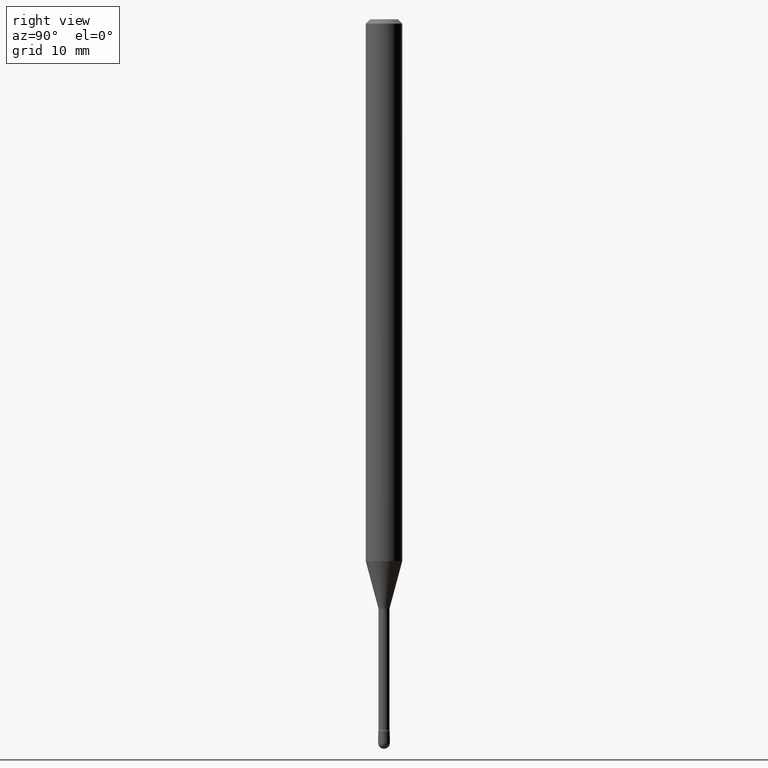
[diagram: clean part render]
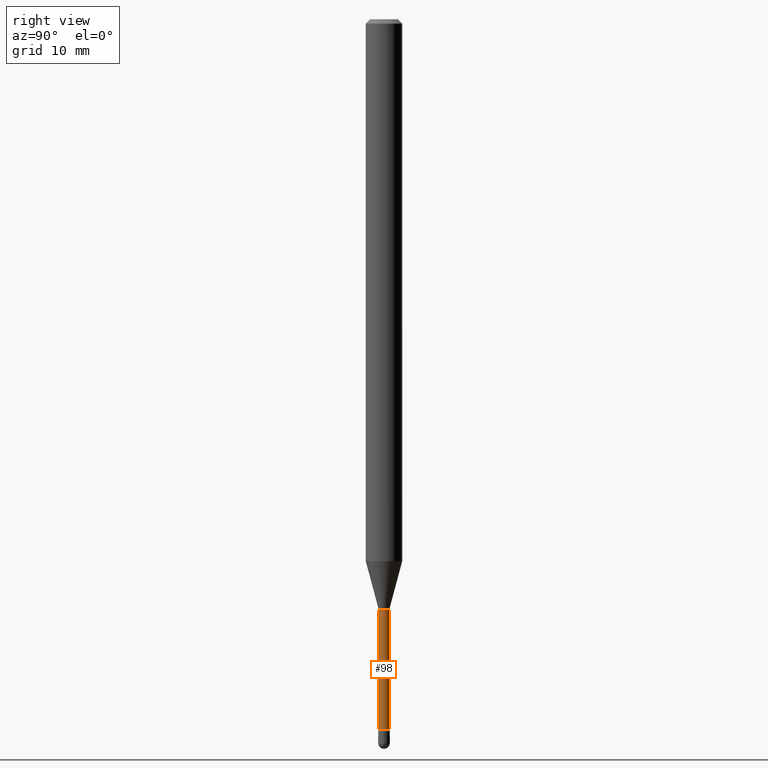
[diagram: same view with one face highlighted and labeled with its STEP entity id]
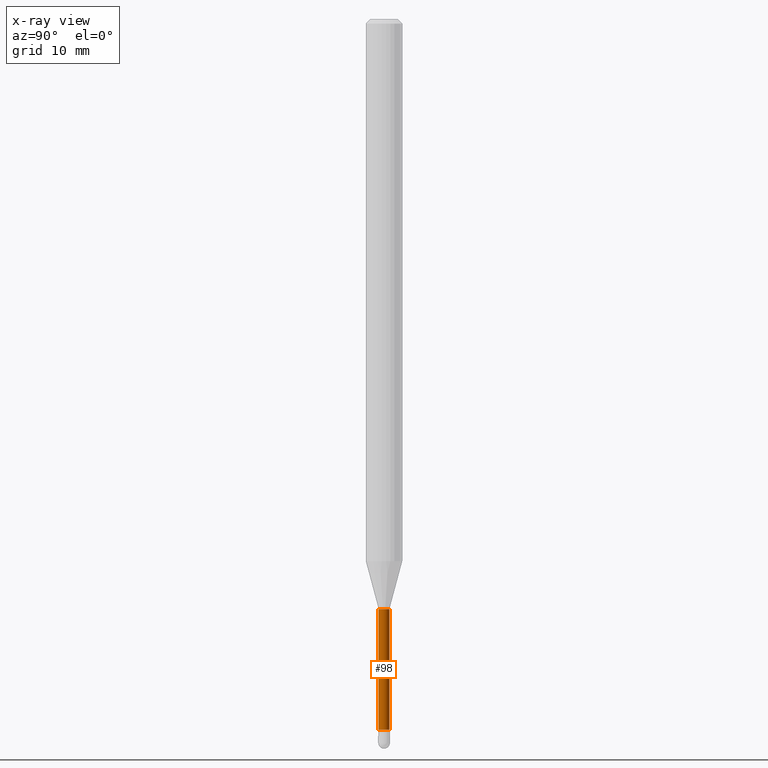
[diagram: x-ray of the same camera — body ghosted, the highlighted face saturated]
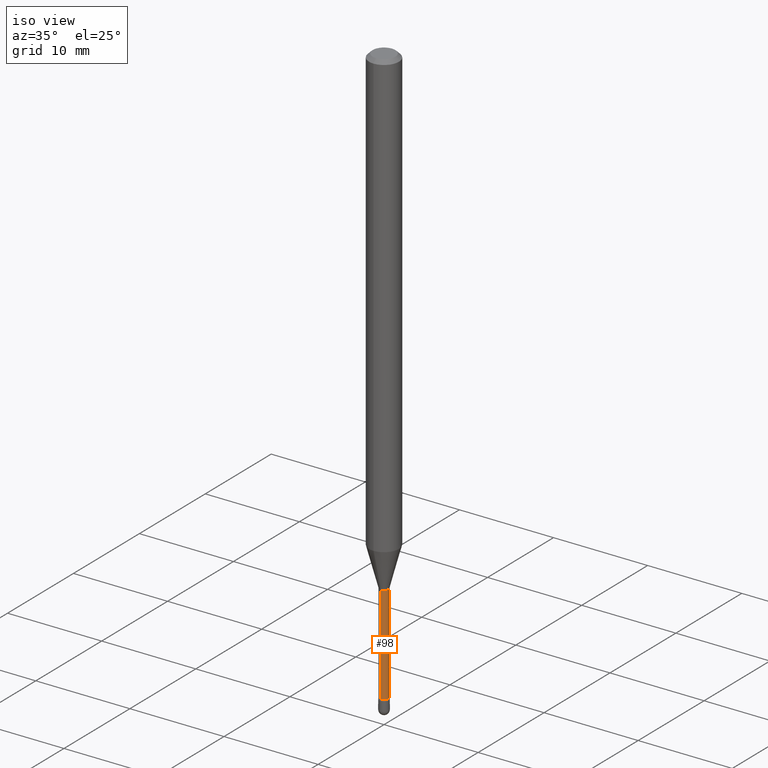
[diagram: same view with one face highlighted and labeled with its STEP entity id]
A machine part, right view. The second image highlights one B-rep face of the part: STEP entity #98.
The next image is the same camera in x-ray: the body ghosted, the highlighted face saturated — about 0% of this face is hidden behind the body in this view.
A second angle (iso view) of the same face is appended — the face is thin or edge-on in the first view.
In plain terms, the highlighted cylindrical surface (edge-blend (fillet) strip) has radius 0.4775 mm, axis along (-0, 0, 1).
Its self-contained STEP definition (entity closure, byte-faithful):
#1 = CARTESIAN_POINT ( 'NONE',  ( -1.312796983405020727E-16, -0.01880000000000003543, 5.437145685465631061E-16 ) ) ;
#24 = AXIS2_PLACEMENT_3D ( 'NONE', #157, #65, #153 ) ;
#25 = ORIENTED_EDGE ( 'NONE', *, *, #257, .T. ) ;
#26 = LINE ( 'NONE', #1, #49 ) ;
#49 = VECTOR ( 'NONE', #434, 39.37007874015748143 ) ;
#54 = CARTESIAN_POINT ( 'NONE',  ( -1.312796983404523252E-16, -0.01880000000000705759, -2.021974787463811207 ) ) ;
#65 = DIRECTION ( 'NONE',  ( -2.445419758855719458E-29, 3.491551577410471603E-15, 1.000000000000000000 ) ) ;
#84 = EDGE_CURVE ( 'NONE', #562, #553, #452, .T. ) ;
#89 = DIRECTION ( 'NONE',  ( -6.982962677686265922E-15, -1.000000000000000000, 0.000000000000000000 ) ) ;
#98 = ADVANCED_FACE ( 'NONE', ( #225 ), #351, .T. ) ;
#138 = LINE ( 'NONE', #227, #515 ) ;
#153 = DIRECTION ( 'NONE',  ( -6.982962677686267499E-15, -1.000000000000000000, 3.491551577410473180E-15 ) ) ;
#157 = CARTESIAN_POINT ( 'NONE',  ( -1.169113584055446105E-44, 1.669184350826100908E-30, 4.780733988912460139E-16 ) ) ;
#172 = ORIENTED_EDGE ( 'NONE', *, *, #271, .F. ) ;
#182 = CARTESIAN_POINT ( 'NONE',  ( 1.335820343229585471E-16, 0.01879999999999294041, -2.021974787463811207 ) ) ;
#188 = CARTESIAN_POINT ( 'NONE',  ( 5.952448138129277157E-29, -8.498859801420915443E-15, -2.434121224617320944 ) ) ;
#192 = AXIS2_PLACEMENT_3D ( 'NONE', #494, #409, #89 ) ;
#199 = ORIENTED_EDGE ( 'NONE', *, *, #84, .F. ) ;
#225 = FACE_OUTER_BOUND ( 'NONE', #566, .T. ) ;
#227 = CARTESIAN_POINT ( 'NONE',  ( 1.335820343228990867E-16, 0.01880000000000003543, 4.124322292359290696E-16 ) ) ;
#232 = ORIENTED_EDGE ( 'NONE', *, *, #503, .T. ) ;
#257 = EDGE_CURVE ( 'NONE', #322, #559, #446, .T. ) ;
#260 = CARTESIAN_POINT ( 'NONE',  ( -1.312796983404428095E-16, -0.01880000000000857374, -2.434121224617320944 ) ) ;
#271 = EDGE_CURVE ( 'NONE', #322, #562, #26, .T. ) ;
#313 = CARTESIAN_POINT ( 'NONE',  ( 1.378452907375191717E-16, 0.01879999999999157692, -2.434121224617320944 ) ) ;
#322 = VERTEX_POINT ( 'NONE', #260 ) ;
#351 = CYLINDRICAL_SURFACE ( 'NONE', #24, 0.01880000000000003543 ) ;
#357 = DIRECTION ( 'NONE',  ( -2.445419758855719458E-29, 3.491551577410471603E-15, 1.000000000000000000 ) ) ;
#407 = AXIS2_PLACEMENT_3D ( 'NONE', #188, #478, #420 ) ;
#409 = DIRECTION ( 'NONE',  ( -2.445419758855719458E-29, 3.491551577410471603E-15, 1.000000000000000000 ) ) ;
#420 = DIRECTION ( 'NONE',  ( -6.982962677686265922E-15, -1.000000000000000000, 0.000000000000000000 ) ) ;
#434 = DIRECTION ( 'NONE',  ( -2.445419758855719458E-29, 3.491551577410471603E-15, 1.000000000000000000 ) ) ;
#446 = CIRCLE ( 'NONE', #407, 0.01880000000000007360 ) ;
#452 = CIRCLE ( 'NONE', #192, 0.01879999999999999727 ) ;
#478 = DIRECTION ( 'NONE',  ( -2.445419758855719458E-29, 3.491551577410471603E-15, 1.000000000000000000 ) ) ;
#494 = CARTESIAN_POINT ( 'NONE',  ( 4.944577097172097400E-29, -7.059829258653472332E-15, -2.021974787463811207 ) ) ;
#503 = EDGE_CURVE ( 'NONE', #559, #553, #138, .T. ) ;
#515 = VECTOR ( 'NONE', #357, 39.37007874015748143 ) ;
#553 = VERTEX_POINT ( 'NONE', #182 ) ;
#559 = VERTEX_POINT ( 'NONE', #313 ) ;
#562 = VERTEX_POINT ( 'NONE', #54 ) ;
#566 = EDGE_LOOP ( 'NONE', ( #25, #232, #199, #172 ) ) ;